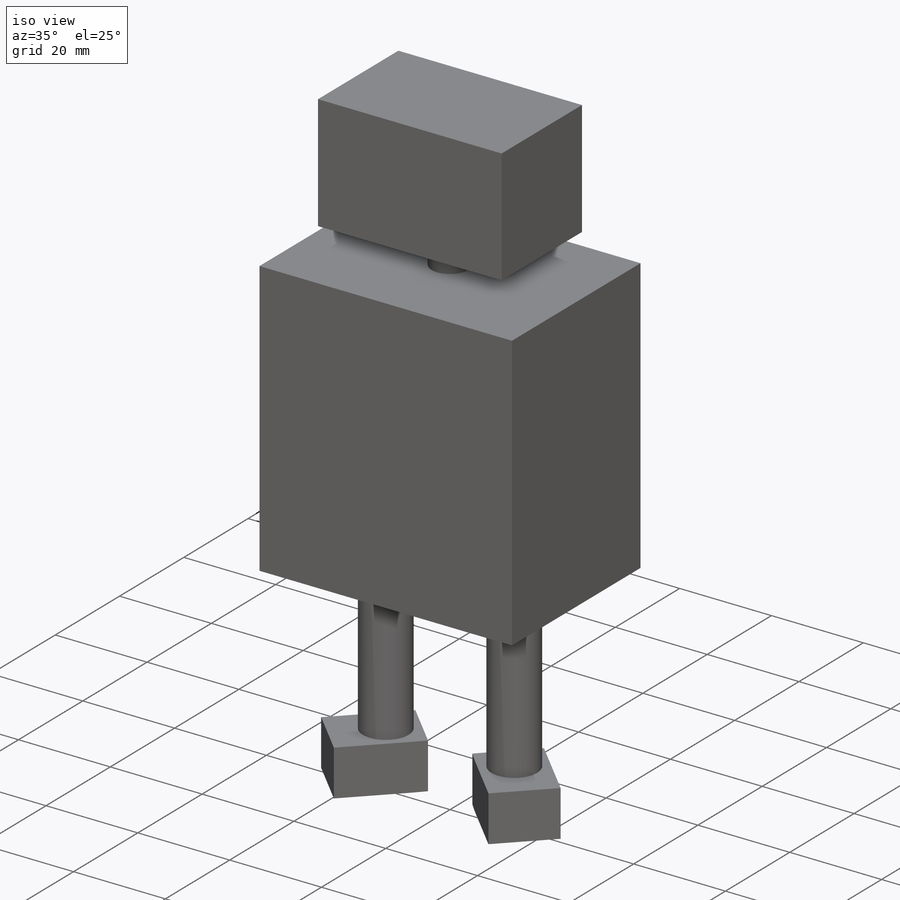
[diagram: iso view]
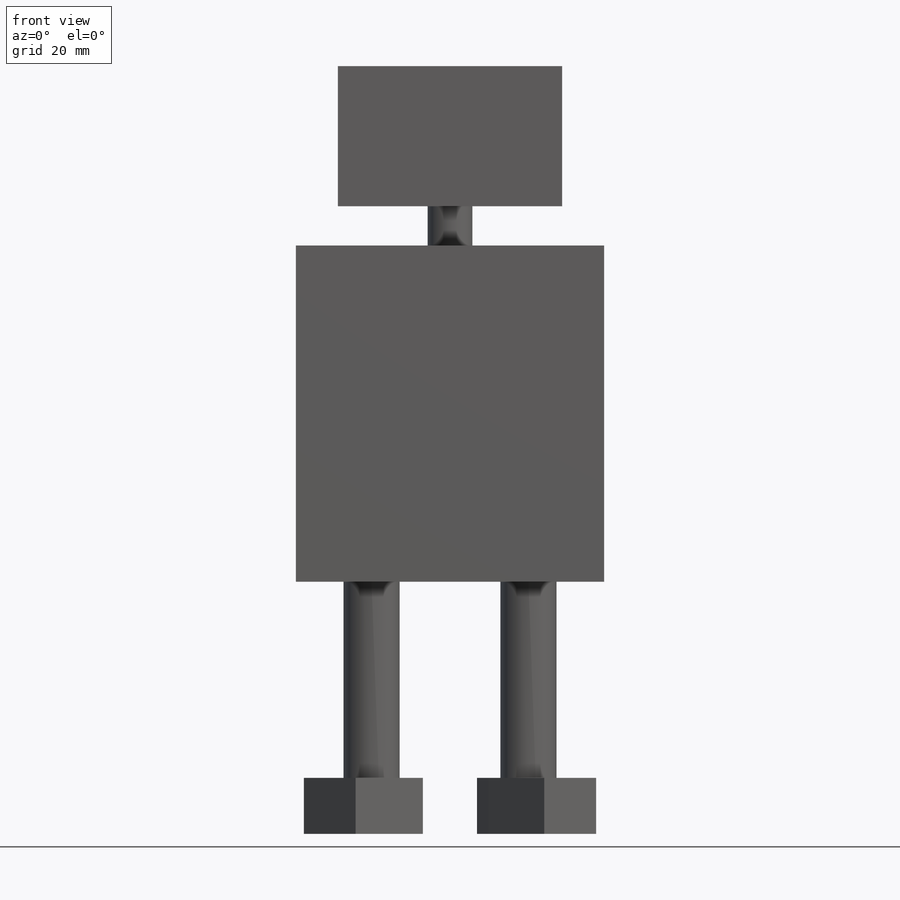
[diagram: front view]
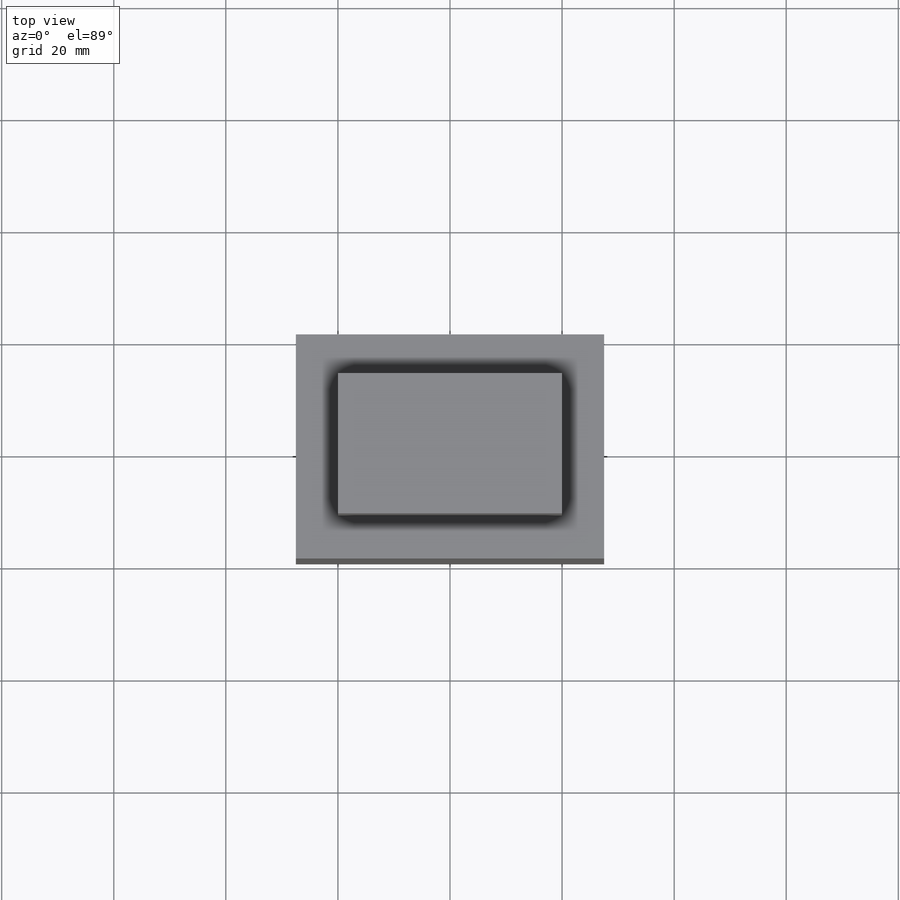
[diagram: top view]
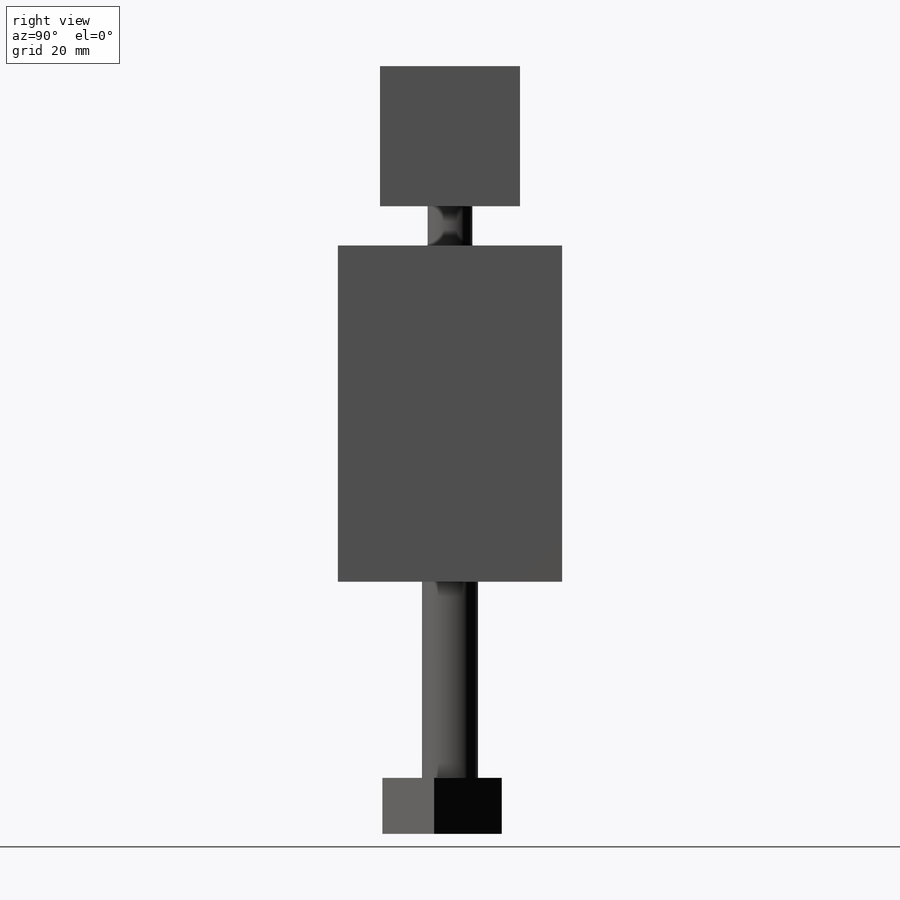
[diagram: right view]
SOLIDWORKS PART (.sldprt)
format: sldprt  version: not decoded by parser v0  size: 162,304 bytes
history: native  units: mm
features: sketch x5, extrude x5, material x1 (+11 scaffold rows collapsed)
feature tree (22):
  scaffold x11  (default folders/planes/origin — collapsed)
  material  "Material <not specified>"
  sketch  "Sketch1"  dims[D1=60.0mm D2=55.0mm]
  extrude  "Boss-Extrude1"  Depth=40mm
  sketch  "Sketch2"  dims[D1=8.0mm]
  extrude  "Boss-Extrude2"  Depth=7mm
  sketch  "Sketch4"  dims[D1=25.0mm D2=40.0mm]
  extrude  "Boss-Extrude3"  Depth=25mm
  sketch  "Sketch5"  dims[D2=10.0mm D1=14.0mm]
  extrude  "Boss-Extrude4"  Depth=35mm
  sketch  "Sketch6"  dims[D1=7.0mm D2=3.0mm D3=3.0mm]
  extrude  "Boss-Extrude5"  Depth=10mm
decode coverage: 10 of 10 modeling features carry decoded parameters
note: suppression state not decoded; provenance and decode notes live in map.json
